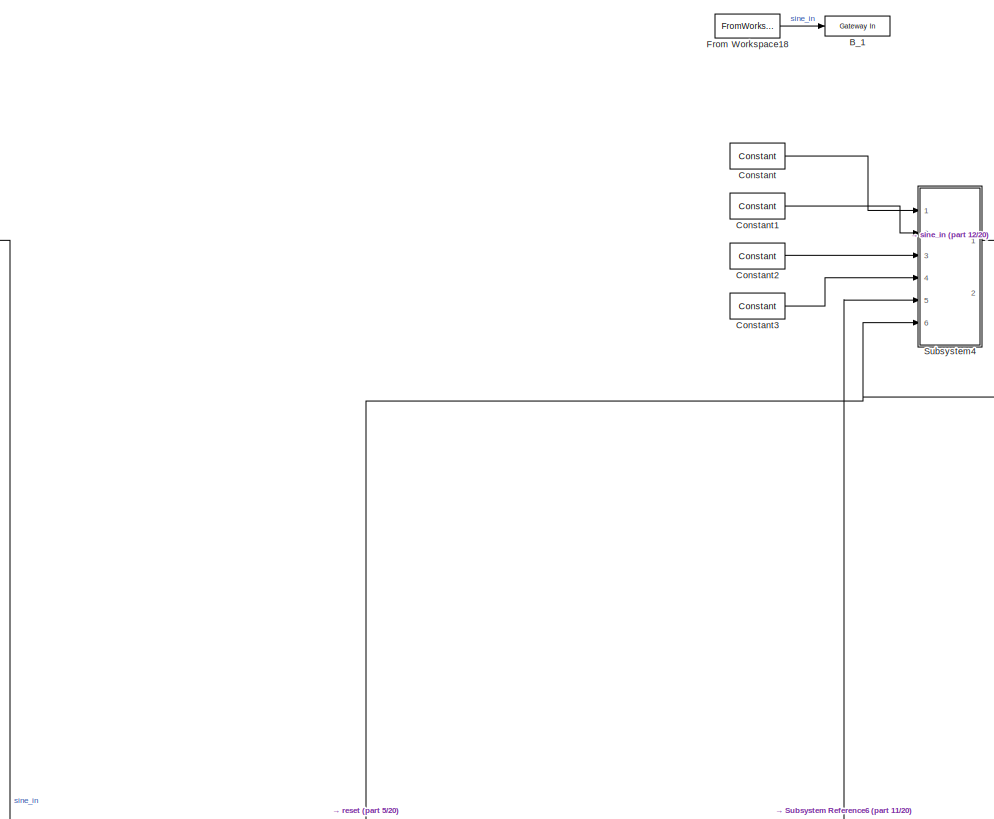
[diagram: root canvas - part 1/20, top center region]
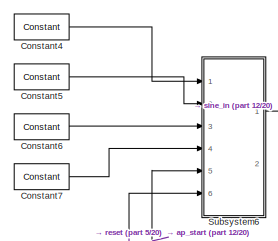
[diagram: root canvas - part 2/20, top right region]
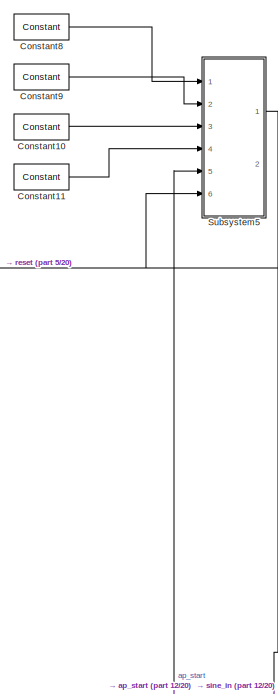
[diagram: root canvas - part 3/20, top right region]
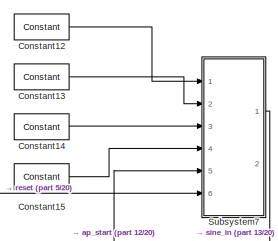
[diagram: root canvas - part 4/20, top right region]
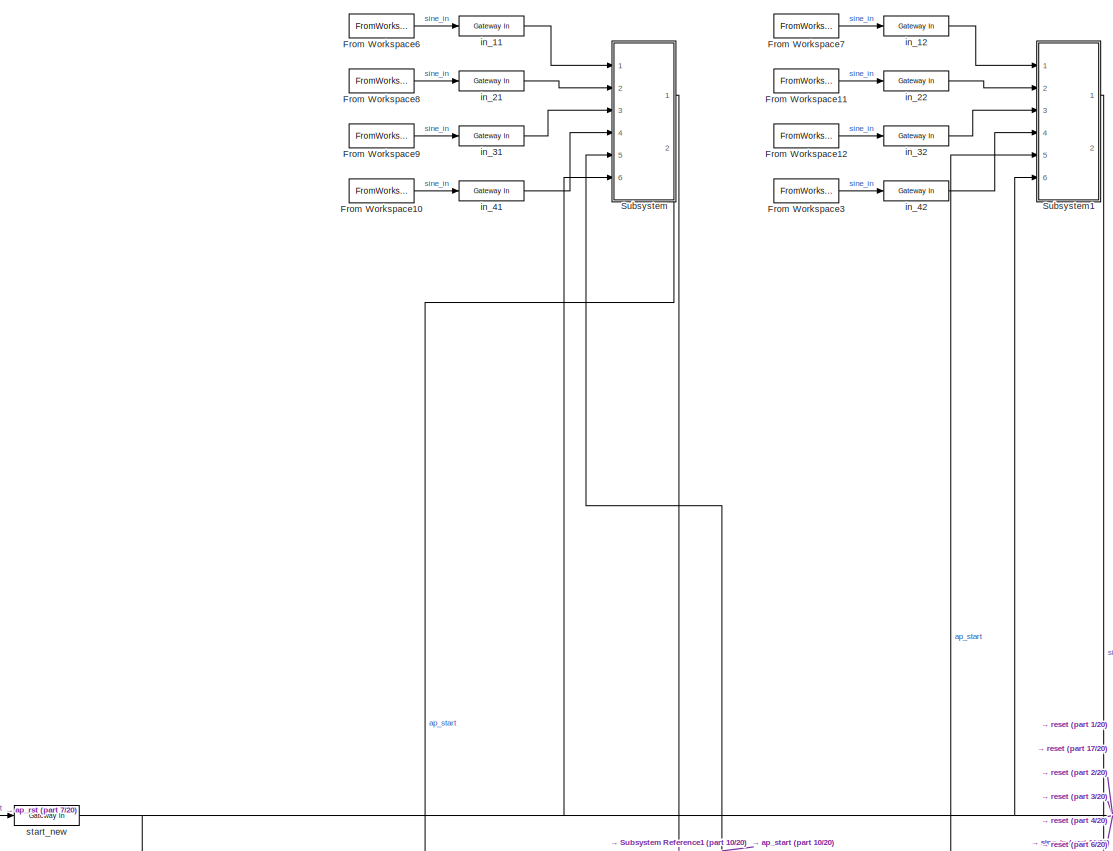
[diagram: root canvas - part 5/20, top left region]
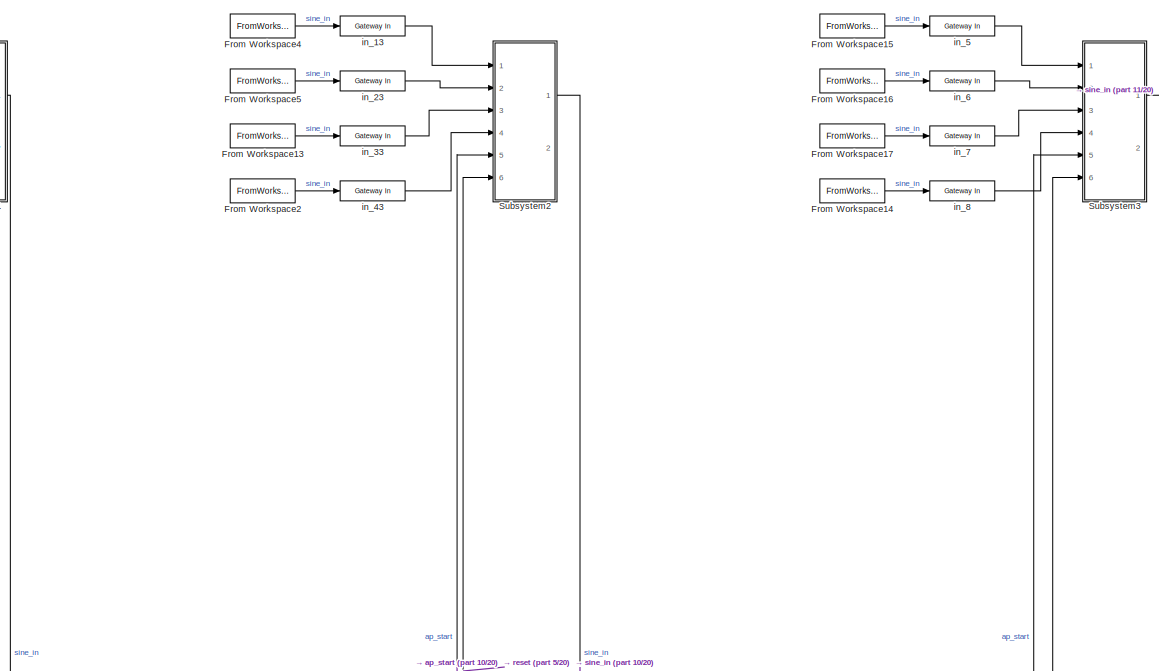
[diagram: root canvas - part 6/20, top center region]
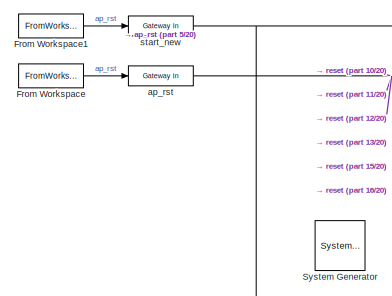
[diagram: root canvas - part 7/20, middle left region]
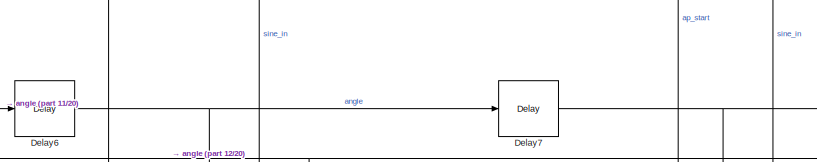
[diagram: root canvas - part 8/20, central region]
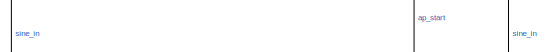
[diagram: root canvas - part 9/20, middle right region]
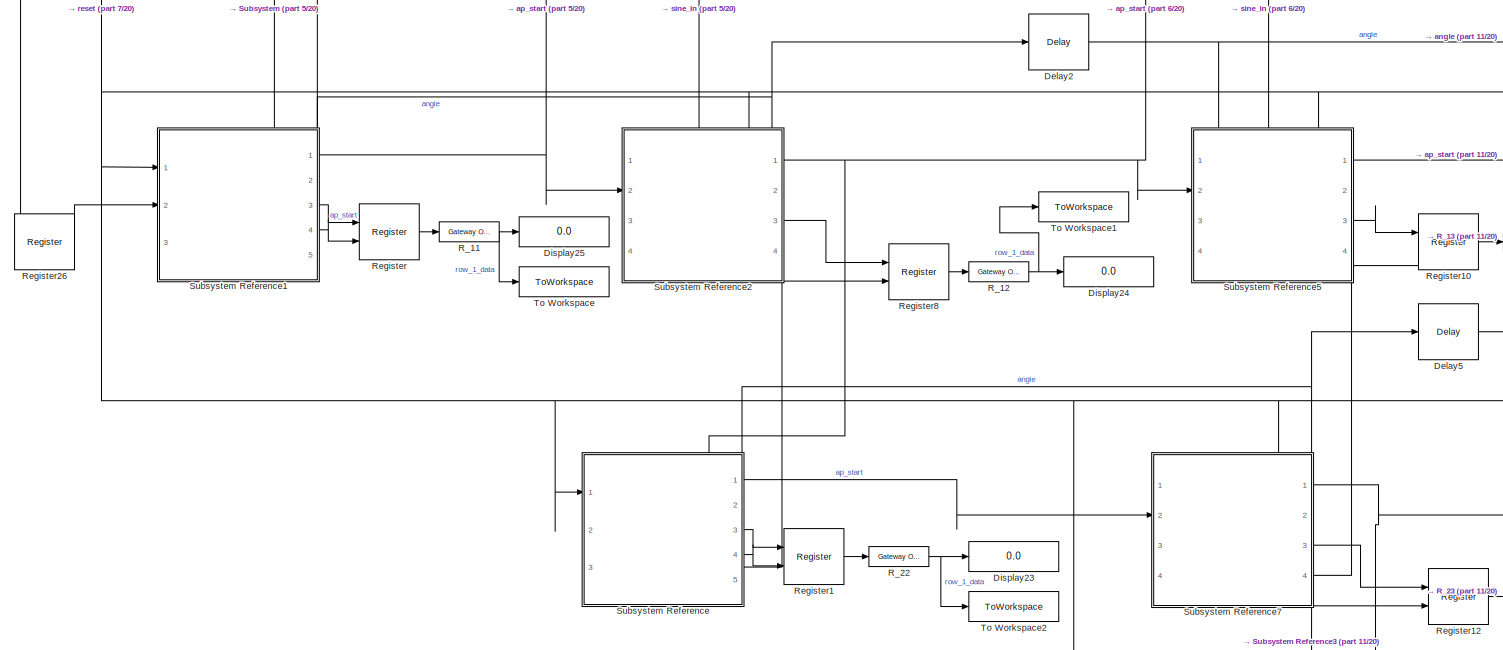
[diagram: root canvas - part 10/20, middle left region]
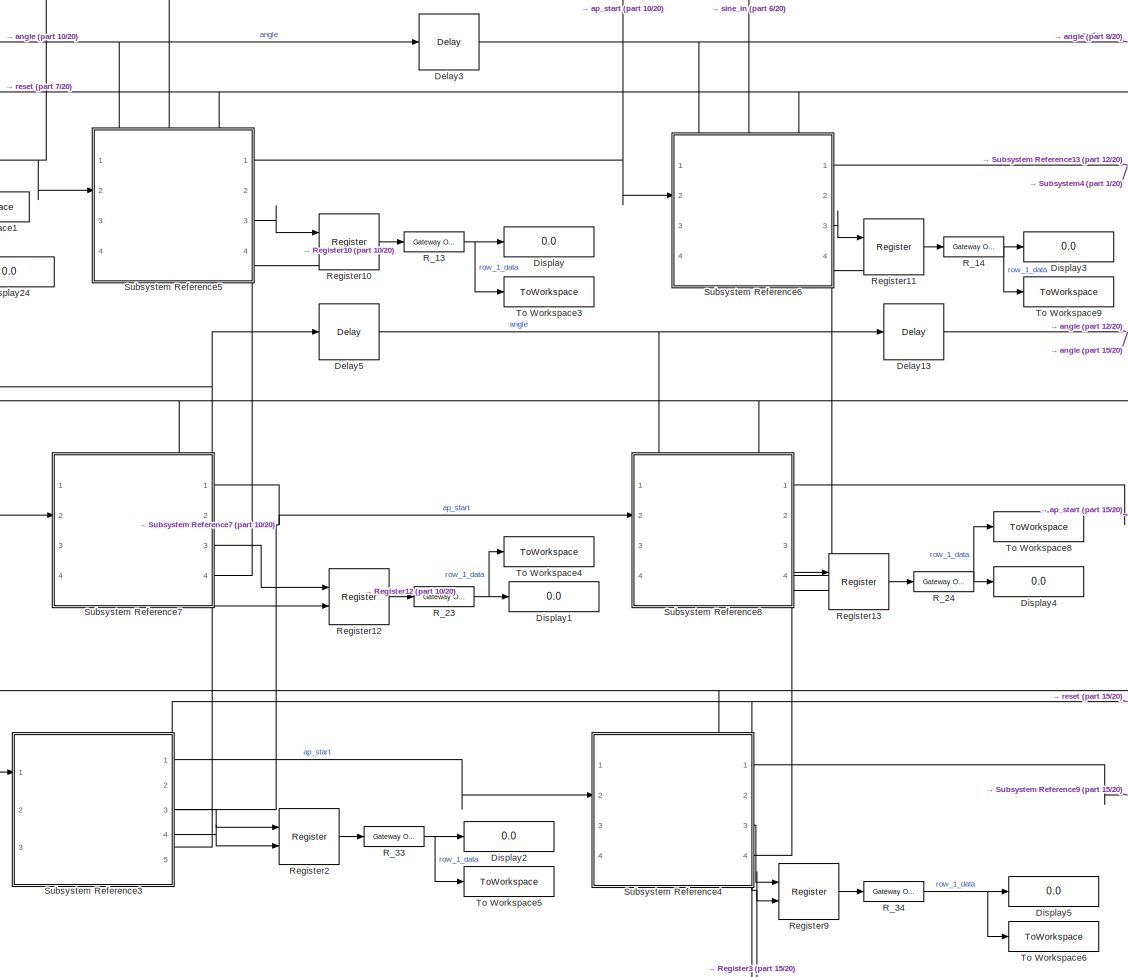
[diagram: root canvas - part 11/20, central region]
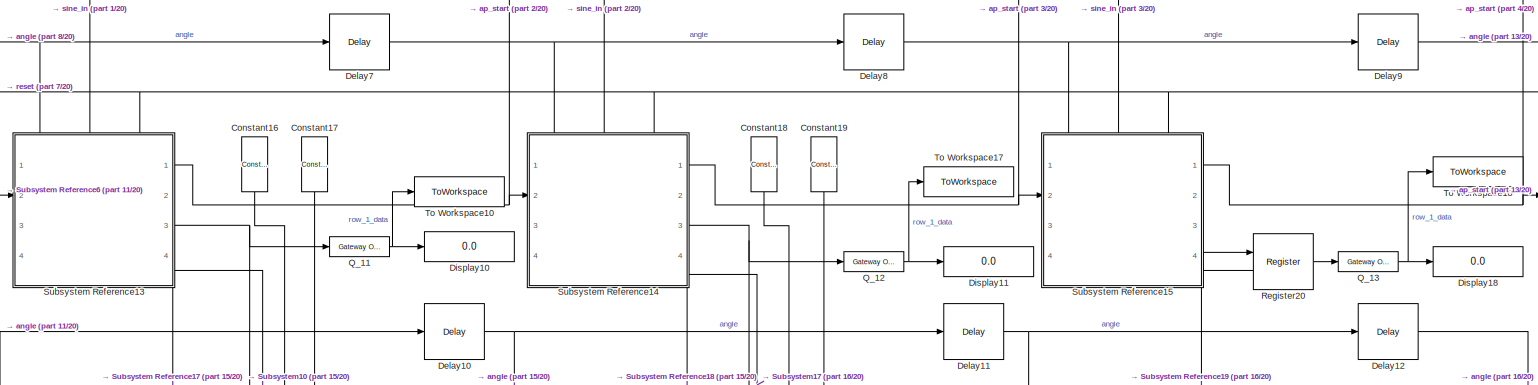
[diagram: root canvas - part 12/20, middle right region]
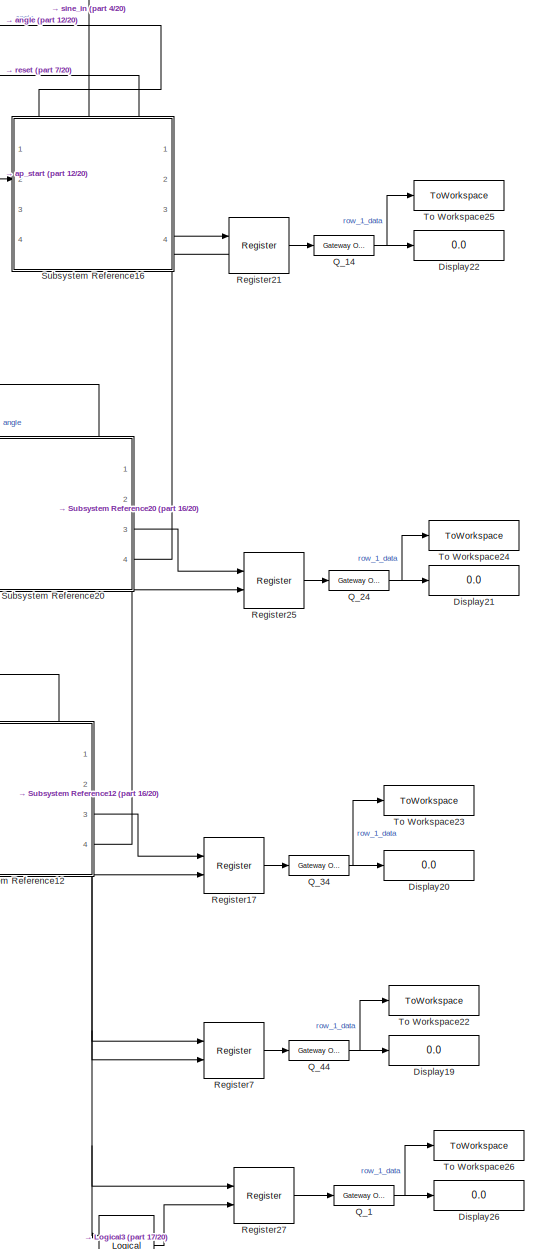
[diagram: root canvas - part 13/20, middle right region]
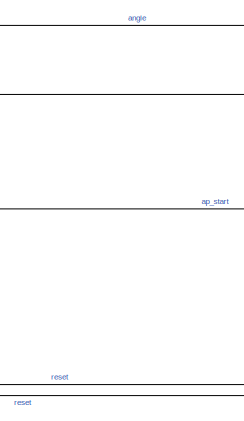
[diagram: root canvas - part 14/20, central region]
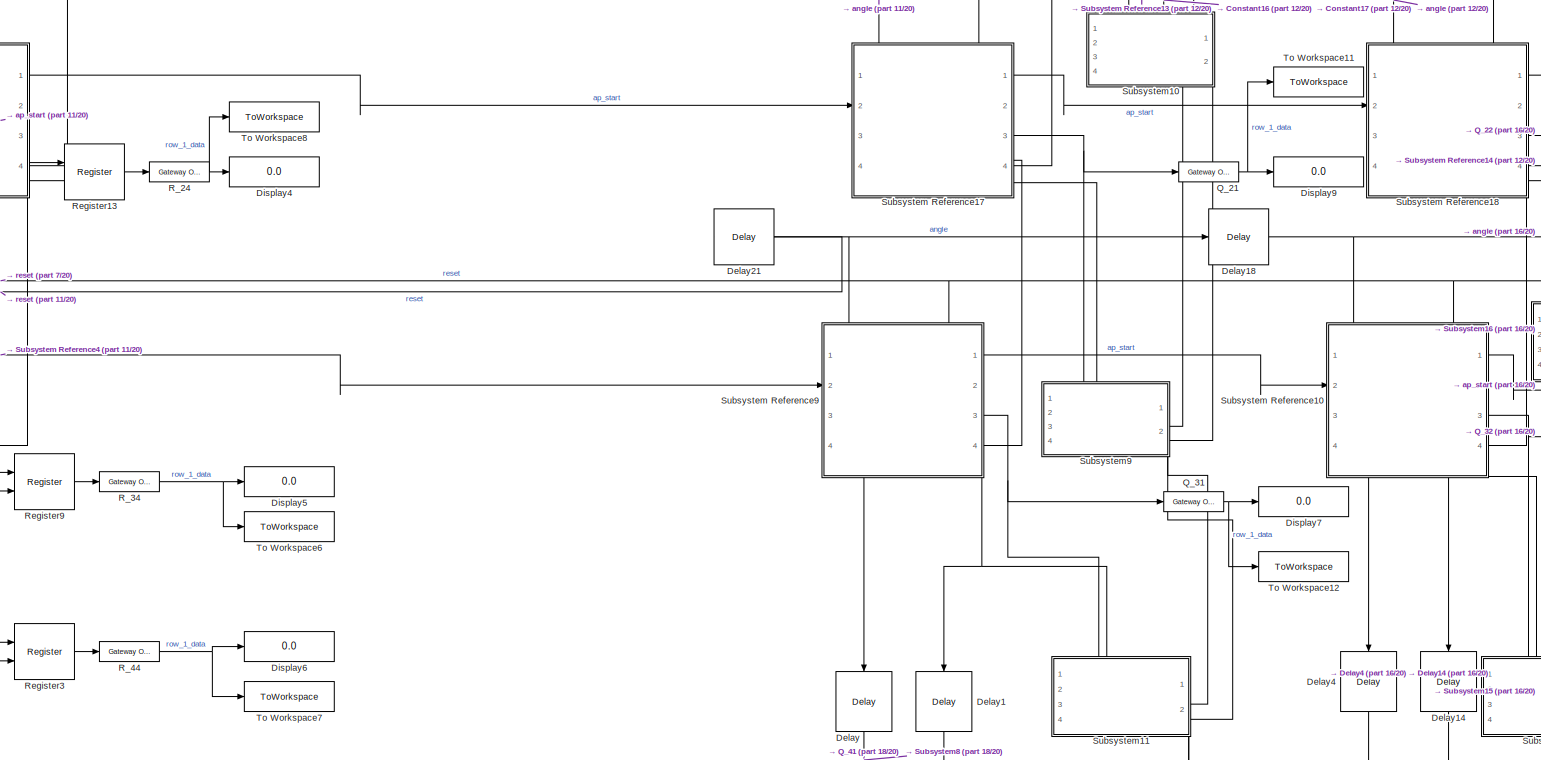
[diagram: root canvas - part 15/20, central region]
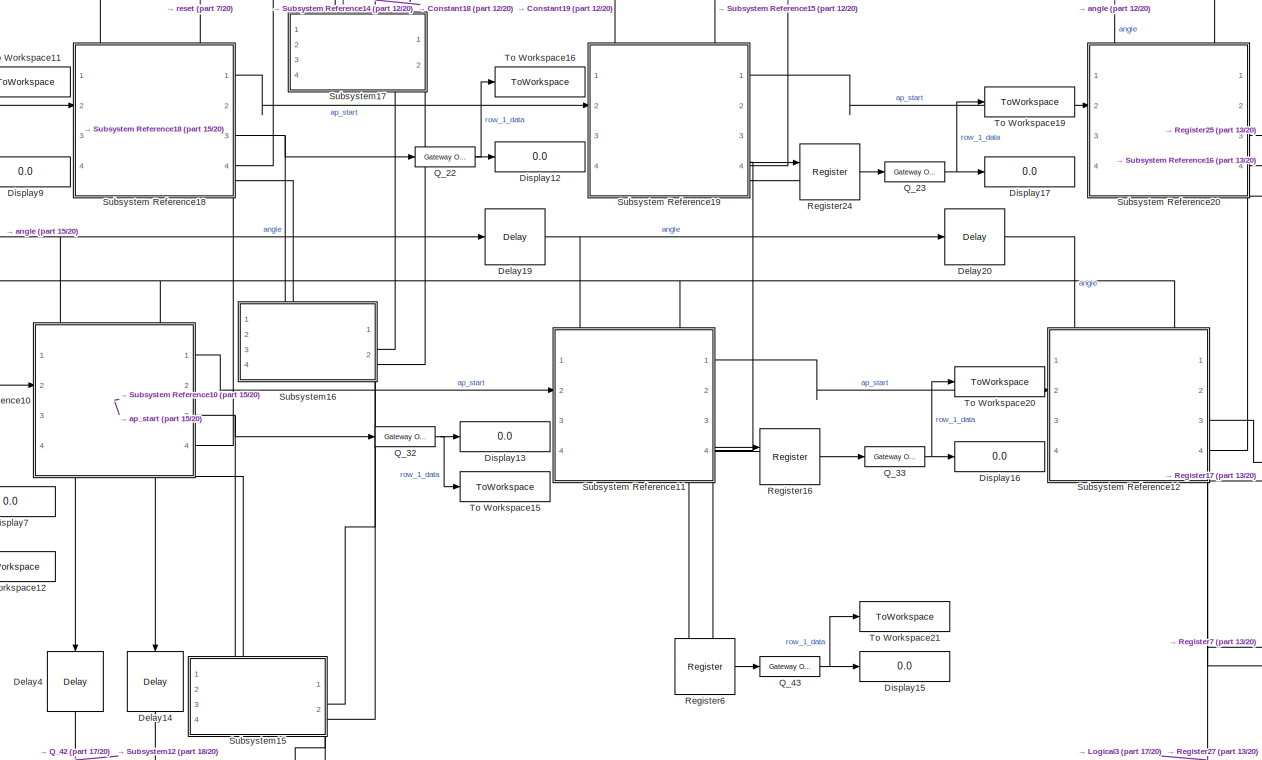
[diagram: root canvas - part 16/20, middle right region]
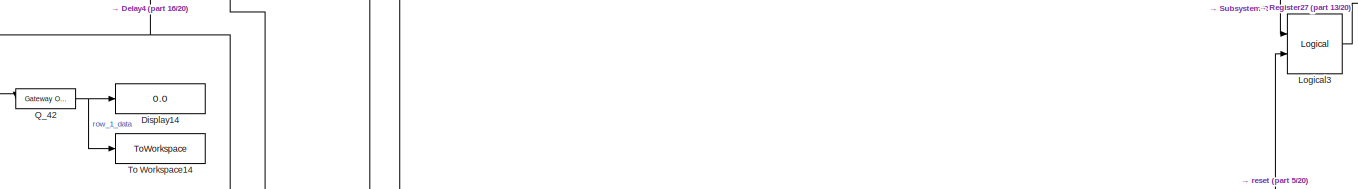
[diagram: root canvas - part 17/20, bottom right region]
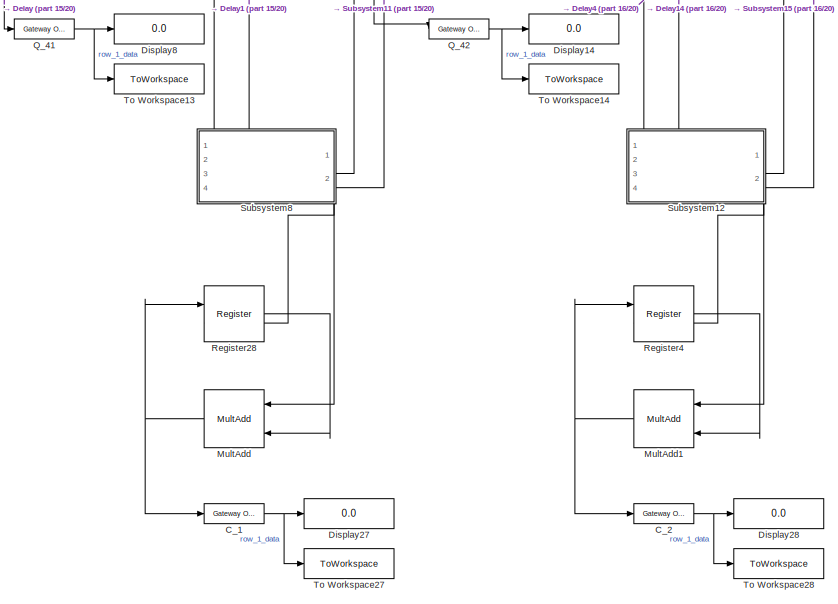
[diagram: root canvas - part 18/20, bottom right region]
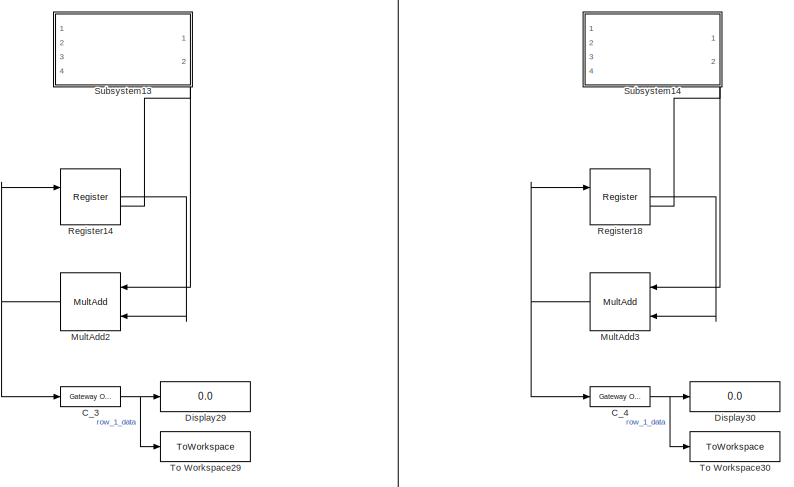
[diagram: root canvas - part 19/20, bottom right region]
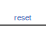
[diagram: root canvas - part 20/20, bottom center region]
MODEL slx_9b98534c2368
KIND model
CONFIG AbsTol = auto
CONFIG EnableMultiTasking = off
CONFIG FixedStep = auto
CONFIG MaxStep = auto
CONFIG MinStep = auto
CONFIG RelTol = 1e-3
CONFIG SampleTimeConstraint = Unconstrained
CONFIG SolverName = VariableStepAuto
CONFIG StartTime = 0.0
CONFIG StopTime = double(sim_length)
BLOCK [Reference]  System Generator  REF=xbsIndex_r4/ System Generator
  AttributesFormatString = System\nGenerator
  Ports = []
  SourceBlock = xbsIndex_r4/ System Generator
  SourceType = Xilinx System Generator Block
  Tag = genX
  UserDataPersistent = on
BLOCK [Reference] B_1  REF=hdlBasic/Gateway In
  Ports = [1, 1]
  SourceBlock = hdlBasic/Gateway In
  SourceType = Gateway In Block
BLOCK [Reference] C_1  REF=hdlBasic/Gateway Out
  Ports = [1, 1]
  SourceBlock = hdlBasic/Gateway Out
  SourceType = Gateway Out Block
BLOCK [Reference] C_2  REF=hdlBasic/Gateway Out
  Ports = [1, 1]
  SourceBlock = hdlBasic/Gateway Out
  SourceType = Gateway Out Block
BLOCK [Reference] C_3  REF=hdlBasic/Gateway Out
  Ports = [1, 1]
  SourceBlock = hdlBasic/Gateway Out
  SourceType = Gateway Out Block
BLOCK [Reference] C_4  REF=hdlBasic/Gateway Out
  Ports = [1, 1]
  SourceBlock = hdlBasic/Gateway Out
  SourceType = Gateway Out Block
BLOCK [Reference] Constant  REF=hdlBasic/Constant
  Ports = [0, 1]
  SourceBlock = hdlBasic/Constant
  SourceType = Constant Block Block
BLOCK [Reference] Constant1  REF=hdlBasic/Constant
  Ports = [0, 1]
  SourceBlock = hdlBasic/Constant
  SourceType = Constant Block Block
BLOCK [Reference] Constant10  REF=hdlBasic/Constant
  Ports = [0, 1]
  SourceBlock = hdlBasic/Constant
  SourceType = Constant Block Block
BLOCK [Reference] Constant11  REF=hdlBasic/Constant
  Ports = [0, 1]
  SourceBlock = hdlBasic/Constant
  SourceType = Constant Block Block
BLOCK [Reference] Constant12  REF=hdlBasic/Constant
  Ports = [0, 1]
  SourceBlock = hdlBasic/Constant
  SourceType = Constant Block Block
BLOCK [Reference] Constant13  REF=hdlBasic/Constant
  Ports = [0, 1]
  SourceBlock = hdlBasic/Constant
  SourceType = Constant Block Block
BLOCK [Reference] Constant14  REF=hdlBasic/Constant
  Ports = [0, 1]
  SourceBlock = hdlBasic/Constant
  SourceType = Constant Block Block
BLOCK [Reference] Constant15  REF=hdlBasic/Constant
  Ports = [0, 1]
  SourceBlock = hdlBasic/Constant
  SourceType = Constant Block Block
BLOCK [Reference] Constant16  REF=hdlBasic/Constant
  NameLocation = left
  Ports = [0, 1]
  SourceBlock = hdlBasic/Constant
  SourceType = Constant Block Block
BLOCK [Reference] Constant17  REF=hdlBasic/Constant
  NameLocation = left
  Ports = [0, 1]
  SourceBlock = hdlBasic/Constant
  SourceType = Constant Block Block
BLOCK [Reference] Constant18  REF=hdlBasic/Constant
  NameLocation = left
  Ports = [0, 1]
  SourceBlock = hdlBasic/Constant
  SourceType = Constant Block Block
BLOCK [Reference] Constant19  REF=hdlBasic/Constant
  NameLocation = left
  Ports = [0, 1]
  SourceBlock = hdlBasic/Constant
  SourceType = Constant Block Block
BLOCK [Reference] Constant2  REF=hdlBasic/Constant
  Ports = [0, 1]
  SourceBlock = hdlBasic/Constant
  SourceType = Constant Block Block
BLOCK [Reference] Constant3  REF=hdlBasic/Constant
  Ports = [0, 1]
  SourceBlock = hdlBasic/Constant
  SourceType = Constant Block Block
BLOCK [Reference] Constant4  REF=hdlBasic/Constant
  Ports = [0, 1]
  SourceBlock = hdlBasic/Constant
  SourceType = Constant Block Block
BLOCK [Reference] Constant5  REF=hdlBasic/Constant
  Ports = [0, 1]
  SourceBlock = hdlBasic/Constant
  SourceType = Constant Block Block
BLOCK [Reference] Constant6  REF=hdlBasic/Constant
  Ports = [0, 1]
  SourceBlock = hdlBasic/Constant
  SourceType = Constant Block Block
BLOCK [Reference] Constant7  REF=hdlBasic/Constant
  Ports = [0, 1]
  SourceBlock = hdlBasic/Constant
  SourceType = Constant Block Block
BLOCK [Reference] Constant8  REF=hdlBasic/Constant
  Ports = [0, 1]
  SourceBlock = hdlBasic/Constant
  SourceType = Constant Block Block
BLOCK [Reference] Constant9  REF=hdlBasic/Constant
  Ports = [0, 1]
  SourceBlock = hdlBasic/Constant
  SourceType = Constant Block Block
BLOCK [Reference] Delay  REF=hdlBasic/Delay
  NameLocation = left
  Ports = [1, 1]
  SourceBlock = hdlBasic/Delay
  SourceType = Delay Block
BLOCK [Reference] Delay1  REF=hdlBasic/Delay
  NameLocation = left
  Ports = [1, 1]
  SourceBlock = hdlBasic/Delay
  SourceType = Delay Block
BLOCK [Reference] Delay10  REF=hdlBasic/Delay
  NameLocation = top
  Ports = [1, 1]
  SourceBlock = hdlBasic/Delay
  SourceType = Delay Block
BLOCK [Reference] Delay11  REF=hdlBasic/Delay
  NameLocation = top
  Ports = [1, 1]
  SourceBlock = hdlBasic/Delay
  SourceType = Delay Block
BLOCK [Reference] Delay12  REF=hdlBasic/Delay
  NameLocation = top
  Ports = [1, 1]
  SourceBlock = hdlBasic/Delay
  SourceType = Delay Block
BLOCK [Reference] Delay13  REF=hdlBasic/Delay
  NameLocation = top
  Ports = [1, 1]
  SourceBlock = hdlBasic/Delay
  SourceType = Delay Block
BLOCK [Reference] Delay14  REF=hdlBasic/Delay
  NameLocation = left
  Ports = [1, 1]
  SourceBlock = hdlBasic/Delay
  SourceType = Delay Block
BLOCK [Reference] Delay18  REF=hdlBasic/Delay
  NameLocation = top
  Ports = [1, 1]
  SourceBlock = hdlBasic/Delay
  SourceType = Delay Block
BLOCK [Reference] Delay19  REF=hdlBasic/Delay
  NameLocation = top
  Ports = [1, 1]
  SourceBlock = hdlBasic/Delay
  SourceType = Delay Block
BLOCK [Reference] Delay2  REF=hdlBasic/Delay
  NameLocation = top
  Ports = [1, 1]
  SourceBlock = hdlBasic/Delay
  SourceType = Delay Block
BLOCK [Reference] Delay20  REF=hdlBasic/Delay
  NameLocation = top
  Ports = [1, 1]
  SourceBlock = hdlBasic/Delay
  SourceType = Delay Block
BLOCK [Reference] Delay21  REF=hdlBasic/Delay
  NameLocation = top
  Ports = [1, 1]
  SourceBlock = hdlBasic/Delay
  SourceType = Delay Block
BLOCK [Reference] Delay3  REF=hdlBasic/Delay
  NameLocation = top
  Ports = [1, 1]
  SourceBlock = hdlBasic/Delay
  SourceType = Delay Block
BLOCK [Reference] Delay4  REF=hdlBasic/Delay
  NameLocation = left
  Ports = [1, 1]
  SourceBlock = hdlBasic/Delay
  SourceType = Delay Block
BLOCK [Reference] Delay5  REF=hdlBasic/Delay
  NameLocation = top
  Ports = [1, 1]
  SourceBlock = hdlBasic/Delay
  SourceType = Delay Block
BLOCK [Reference] Delay6  REF=hdlBasic/Delay
  NameLocation = top
  Ports = [1, 1]
  SourceBlock = hdlBasic/Delay
  SourceType = Delay Block
BLOCK [Reference] Delay7  REF=hdlBasic/Delay
  NameLocation = top
  Ports = [1, 1]
  SourceBlock = hdlBasic/Delay
  SourceType = Delay Block
BLOCK [Reference] Delay8  REF=hdlBasic/Delay
  NameLocation = top
  Ports = [1, 1]
  SourceBlock = hdlBasic/Delay
  SourceType = Delay Block
BLOCK [Reference] Delay9  REF=hdlBasic/Delay
  NameLocation = top
  Ports = [1, 1]
  SourceBlock = hdlBasic/Delay
  SourceType = Delay Block
BLOCK [Display] Display
  Decimation = 1
  Ports = [1]
BLOCK [Display] Display1
  Decimation = 1
  Ports = [1]
BLOCK [Display] Display10
  Decimation = 1
  Ports = [1]
BLOCK [Display] Display11
  Decimation = 1
  Ports = [1]
BLOCK [Display] Display12
  Decimation = 1
  Ports = [1]
BLOCK [Display] Display13
  Decimation = 1
  Ports = [1]
BLOCK [Display] Display14
  Decimation = 1
  Ports = [1]
BLOCK [Display] Display15
  Decimation = 1
  Ports = [1]
BLOCK [Display] Display16
  Decimation = 1
  Ports = [1]
BLOCK [Display] Display17
  Decimation = 1
  Ports = [1]
BLOCK [Display] Display18
  Decimation = 1
  Ports = [1]
BLOCK [Display] Display19
  Decimation = 1
  Ports = [1]
BLOCK [Display] Display2
  Decimation = 1
  Ports = [1]
BLOCK [Display] Display20
  Decimation = 1
  Ports = [1]
BLOCK [Display] Display21
  Decimation = 1
  Ports = [1]
BLOCK [Display] Display22
  Decimation = 1
  Ports = [1]
BLOCK [Display] Display23
  Decimation = 1
  Ports = [1]
BLOCK [Display] Display24
  Decimation = 1
  Ports = [1]
BLOCK [Display] Display25
  Decimation = 1
  Ports = [1]
BLOCK [Display] Display26
  Decimation = 1
  Ports = [1]
BLOCK [Display] Display27
  Decimation = 1
  Ports = [1]
BLOCK [Display] Display28
  Decimation = 1
  Ports = [1]
BLOCK [Display] Display29
  Decimation = 1
  Ports = [1]
BLOCK [Display] Display3
  Decimation = 1
  Ports = [1]
BLOCK [Display] Display30
  Decimation = 1
  Ports = [1]
BLOCK [Display] Display4
  Decimation = 1
  Ports = [1]
BLOCK [Display] Display5
  Decimation = 1
  Ports = [1]
BLOCK [Display] Display6
  Decimation = 1
  Ports = [1]
BLOCK [Display] Display7
  Decimation = 1
  Ports = [1]
BLOCK [Display] Display8
  Decimation = 1
  Ports = [1]
BLOCK [Display] Display9
  Decimation = 1
  Ports = [1]
BLOCK [FromWorkspace] From Workspace
  OutputAfterFinalValue = Setting to zero
  VariableName = ap_rst
BLOCK [FromWorkspace] From Workspace1
  OutputAfterFinalValue = Setting to zero
  VariableName = start_new
BLOCK [FromWorkspace] From Workspace10
  OutputAfterFinalValue = Setting to zero
  VariableName = in_41
BLOCK [FromWorkspace] From Workspace11
  OutputAfterFinalValue = Setting to zero
  VariableName = in_22
BLOCK [FromWorkspace] From Workspace12
  OutputAfterFinalValue = Setting to zero
  VariableName = in_32
BLOCK [FromWorkspace] From Workspace13
  OutputAfterFinalValue = Setting to zero
  VariableName = in_33
BLOCK [FromWorkspace] From Workspace14
  OutputAfterFinalValue = Setting to zero
  VariableName = in_44
BLOCK [FromWorkspace] From Workspace15
  OutputAfterFinalValue = Setting to zero
  VariableName = in_14
BLOCK [FromWorkspace] From Workspace16
  OutputAfterFinalValue = Setting to zero
  VariableName = in_24
BLOCK [FromWorkspace] From Workspace17
  OutputAfterFinalValue = Setting to zero
  VariableName = in_34
BLOCK [FromWorkspace] From Workspace18
  OutputAfterFinalValue = Setting to zero
  VariableName = B_1
BLOCK [FromWorkspace] From Workspace2
  OutputAfterFinalValue = Setting to zero
  VariableName = in_43
BLOCK [FromWorkspace] From Workspace3
  OutputAfterFinalValue = Setting to zero
  VariableName = in_42
BLOCK [FromWorkspace] From Workspace4
  OutputAfterFinalValue = Setting to zero
  VariableName = in_13
BLOCK [FromWorkspace] From Workspace5
  OutputAfterFinalValue = Setting to zero
  VariableName = in_23
BLOCK [FromWorkspace] From Workspace6
  OutputAfterFinalValue = Setting to zero
  VariableName = in_11
BLOCK [FromWorkspace] From Workspace7
  OutputAfterFinalValue = Setting to zero
  VariableName = in_12
BLOCK [FromWorkspace] From Workspace8
  OutputAfterFinalValue = Setting to zero
  VariableName = in_21
BLOCK [FromWorkspace] From Workspace9
  OutputAfterFinalValue = Setting to zero
  VariableName = in_31
BLOCK [Reference] Logical3  REF=hdlBasic/Logical
  Ports = [2, 1]
  SourceBlock = hdlBasic/Logical
  SourceType = Logical Block Block
BLOCK [Reference] MultAdd  REF=hdlBasic/MultAdd
  NameLocation = top
  Ports = [3, 1]
  SourceBlock = hdlBasic/MultAdd
  SourceType = Multiply Adder Block
BLOCK [Reference] MultAdd1  REF=hdlBasic/MultAdd
  NameLocation = top
  Ports = [3, 1]
  SourceBlock = hdlBasic/MultAdd
  SourceType = Multiply Adder Block
BLOCK [Reference] MultAdd2  REF=hdlBasic/MultAdd
  NameLocation = top
  Ports = [3, 1]
  SourceBlock = hdlBasic/MultAdd
  SourceType = Multiply Adder Block
BLOCK [Reference] MultAdd3  REF=hdlBasic/MultAdd
  NameLocation = top
  Ports = [3, 1]
  SourceBlock = hdlBasic/MultAdd
  SourceType = Multiply Adder Block
BLOCK [Reference] Q_1  REF=hdlBasic/Gateway Out
  Ports = [1, 1]
  SourceBlock = hdlBasic/Gateway Out
  SourceType = Gateway Out Block
BLOCK [Reference] Q_11  REF=hdlBasic/Gateway Out
  Ports = [1, 1]
  SourceBlock = hdlBasic/Gateway Out
  SourceType = Gateway Out Block
BLOCK [Reference] Q_12  REF=hdlBasic/Gateway Out
  Ports = [1, 1]
  SourceBlock = hdlBasic/Gateway Out
  SourceType = Gateway Out Block
BLOCK [Reference] Q_13  REF=hdlBasic/Gateway Out
  Ports = [1, 1]
  SourceBlock = hdlBasic/Gateway Out
  SourceType = Gateway Out Block
BLOCK [Reference] Q_14  REF=hdlBasic/Gateway Out
  Ports = [1, 1]
  SourceBlock = hdlBasic/Gateway Out
  SourceType = Gateway Out Block
BLOCK [Reference] Q_21  REF=hdlBasic/Gateway Out
  Ports = [1, 1]
  SourceBlock = hdlBasic/Gateway Out
  SourceType = Gateway Out Block
BLOCK [Reference] Q_22  REF=hdlBasic/Gateway Out
  Ports = [1, 1]
  SourceBlock = hdlBasic/Gateway Out
  SourceType = Gateway Out Block
BLOCK [Reference] Q_23  REF=hdlBasic/Gateway Out
  Ports = [1, 1]
  SourceBlock = hdlBasic/Gateway Out
  SourceType = Gateway Out Block
BLOCK [Reference] Q_24  REF=hdlBasic/Gateway Out
  Ports = [1, 1]
  SourceBlock = hdlBasic/Gateway Out
  SourceType = Gateway Out Block
BLOCK [Reference] Q_31  REF=hdlBasic/Gateway Out
  Ports = [1, 1]
  SourceBlock = hdlBasic/Gateway Out
  SourceType = Gateway Out Block
BLOCK [Reference] Q_32  REF=hdlBasic/Gateway Out
  Ports = [1, 1]
  SourceBlock = hdlBasic/Gateway Out
  SourceType = Gateway Out Block
BLOCK [Reference] Q_33  REF=hdlBasic/Gateway Out
  Ports = [1, 1]
  SourceBlock = hdlBasic/Gateway Out
  SourceType = Gateway Out Block
BLOCK [Reference] Q_34  REF=hdlBasic/Gateway Out
  Ports = [1, 1]
  SourceBlock = hdlBasic/Gateway Out
  SourceType = Gateway Out Block
BLOCK [Reference] Q_41  REF=hdlBasic/Gateway Out
  Ports = [1, 1]
  SourceBlock = hdlBasic/Gateway Out
  SourceType = Gateway Out Block
BLOCK [Reference] Q_42  REF=hdlBasic/Gateway Out
  Ports = [1, 1]
  SourceBlock = hdlBasic/Gateway Out
  SourceType = Gateway Out Block
BLOCK [Reference] Q_43  REF=hdlBasic/Gateway Out
  Ports = [1, 1]
  SourceBlock = hdlBasic/Gateway Out
  SourceType = Gateway Out Block
BLOCK [Reference] Q_44  REF=hdlBasic/Gateway Out
  Ports = [1, 1]
  SourceBlock = hdlBasic/Gateway Out
  SourceType = Gateway Out Block
BLOCK [Reference] R_11  REF=hdlBasic/Gateway Out
  Ports = [1, 1]
  SourceBlock = hdlBasic/Gateway Out
  SourceType = Gateway Out Block
BLOCK [Reference] R_12  REF=hdlBasic/Gateway Out
  Ports = [1, 1]
  SourceBlock = hdlBasic/Gateway Out
  SourceType = Gateway Out Block
BLOCK [Reference] R_13  REF=hdlBasic/Gateway Out
  Ports = [1, 1]
  SourceBlock = hdlBasic/Gateway Out
  SourceType = Gateway Out Block
BLOCK [Reference] R_14  REF=hdlBasic/Gateway Out
  Ports = [1, 1]
  SourceBlock = hdlBasic/Gateway Out
  SourceType = Gateway Out Block
BLOCK [Reference] R_22  REF=hdlBasic/Gateway Out
  Ports = [1, 1]
  SourceBlock = hdlBasic/Gateway Out
  SourceType = Gateway Out Block
BLOCK [Reference] R_23  REF=hdlBasic/Gateway Out
  Ports = [1, 1]
  SourceBlock = hdlBasic/Gateway Out
  SourceType = Gateway Out Block
BLOCK [Reference] R_24  REF=hdlBasic/Gateway Out
  Ports = [1, 1]
  SourceBlock = hdlBasic/Gateway Out
  SourceType = Gateway Out Block
BLOCK [Reference] R_33  REF=hdlBasic/Gateway Out
  Ports = [1, 1]
  SourceBlock = hdlBasic/Gateway Out
  SourceType = Gateway Out Block
BLOCK [Reference] R_34  REF=hdlBasic/Gateway Out
  Ports = [1, 1]
  SourceBlock = hdlBasic/Gateway Out
  SourceType = Gateway Out Block
BLOCK [Reference] R_44  REF=hdlBasic/Gateway Out
  Ports = [1, 1]
  SourceBlock = hdlBasic/Gateway Out
  SourceType = Gateway Out Block
BLOCK [Reference] Register  REF=hdlBasic/Register
  Ports = [2, 1]
  SourceBlock = hdlBasic/Register
  SourceType = Register Block
BLOCK [Reference] Register1  REF=hdlBasic/Register
  Ports = [2, 1]
  SourceBlock = hdlBasic/Register
  SourceType = Register Block
BLOCK [Reference] Register10  REF=hdlBasic/Register
  Ports = [2, 1]
  SourceBlock = hdlBasic/Register
  SourceType = Register Block
BLOCK [Reference] Register11  REF=hdlBasic/Register
  Ports = [2, 1]
  SourceBlock = hdlBasic/Register
  SourceType = Register Block
BLOCK [Reference] Register12  REF=hdlBasic/Register
  Ports = [2, 1]
  SourceBlock = hdlBasic/Register
  SourceType = Register Block
BLOCK [Reference] Register13  REF=hdlBasic/Register
  Ports = [2, 1]
  SourceBlock = hdlBasic/Register
  SourceType = Register Block
BLOCK [Reference] Register14  REF=hdlBasic/Register
  Ports = [2, 1]
  SourceBlock = hdlBasic/Register
  SourceType = Register Block
BLOCK [Reference] Register16  REF=hdlBasic/Register
  Ports = [2, 1]
  SourceBlock = hdlBasic/Register
  SourceType = Register Block
BLOCK [Reference] Register17  REF=hdlBasic/Register
  Ports = [2, 1]
  SourceBlock = hdlBasic/Register
  SourceType = Register Block
BLOCK [Reference] Register18  REF=hdlBasic/Register
  Ports = [2, 1]
  SourceBlock = hdlBasic/Register
  SourceType = Register Block
BLOCK [Reference] Register2  REF=hdlBasic/Register
  Ports = [2, 1]
  SourceBlock = hdlBasic/Register
  SourceType = Register Block
BLOCK [Reference] Register20  REF=hdlBasic/Register
  Ports = [2, 1]
  SourceBlock = hdlBasic/Register
  SourceType = Register Block
BLOCK [Reference] Register21  REF=hdlBasic/Register
  Ports = [2, 1]
  SourceBlock = hdlBasic/Register
  SourceType = Register Block
BLOCK [Reference] Register24  REF=hdlBasic/Register
  Ports = [2, 1]
  SourceBlock = hdlBasic/Register
  SourceType = Register Block
BLOCK [Reference] Register25  REF=hdlBasic/Register
  Ports = [2, 1]
  SourceBlock = hdlBasic/Register
  SourceType = Register Block
BLOCK [Reference] Register26  REF=hdlBasic/Register
  Ports = [1, 1]
  SourceBlock = hdlBasic/Register
  SourceType = Register Block
BLOCK [Reference] Register27  REF=hdlBasic/Register
  Ports = [2, 1]
  SourceBlock = hdlBasic/Register
  SourceType = Register Block
BLOCK [Reference] Register28  REF=hdlBasic/Register
  Ports = [2, 1]
  SourceBlock = hdlBasic/Register
  SourceType = Register Block
BLOCK [Reference] Register3  REF=hdlBasic/Register
  Ports = [2, 1]
  SourceBlock = hdlBasic/Register
  SourceType = Register Block
BLOCK [Reference] Register4  REF=hdlBasic/Register
  Ports = [2, 1]
  SourceBlock = hdlBasic/Register
  SourceType = Register Block
BLOCK [Reference] Register6  REF=hdlBasic/Register
  Ports = [2, 1]
  SourceBlock = hdlBasic/Register
  SourceType = Register Block
BLOCK [Reference] Register7  REF=hdlBasic/Register
  Ports = [2, 1]
  SourceBlock = hdlBasic/Register
  SourceType = Register Block
BLOCK [Reference] Register8  REF=hdlBasic/Register
  Ports = [2, 1]
  SourceBlock = hdlBasic/Register
  SourceType = Register Block
BLOCK [Reference] Register9  REF=hdlBasic/Register
  Ports = [2, 1]
  SourceBlock = hdlBasic/Register
  SourceType = Register Block
BLOCK [SubSystem] Subsystem
  PortSchema = {"entries":[{"content":{"sides":[{"content":{"connectorIds":["In1","In2","In3","In4","In5","In6"]},"type":"ConnectorPlacement.EquallySpacedRectSide","uuid":"c9659870-197e-4708-9e56-aa8d60ec2132"},{"content":{"connectorIds":["Out1"],"side":"RIGHT"},"type":"ConnectorPlacement.EquallySpacedRectSide","uuid":"f9d7c189-098f-4a24-828d-c7ef82e0ce16"},{"content":{"connectorIds":[],"side":"TOP"},"type":"Con...<+420ch>  <repeated x8 — deduplicated; at blocks: Subsystem, Subsystem1, Subsystem2, Subsystem3, Subsystem4, Subsystem5, Subsystem6, Subsystem7>
  Ports = [6, 2]
  ReferencedSubsystem = input_muxer
  RequestExecContextInheritance = off
BLOCK [SubSystem] Subsystem Reference
  PortSchema = {"entries":[{"content":{"sides":[{"content":{"connectorIds":["In1"]},"type":"ConnectorPlacement.EquallySpacedRectSide","uuid":"e73d0d7d-03bc-4d00-801b-b8c760b16be4"},{"content":{"connectorIds":["Out1","Out3","Out4"],"side":"RIGHT"},"type":"ConnectorPlacement.EquallySpacedRectSide","uuid":"fb412951-8b1f-47f8-8fed-40e91e78b205"},{"content":{"connectorIds":["Out2","In3","In2"],"side":"TOP"},"type":"C...<+422ch>
  Ports = [3, 5]
  ReferencedSubsystem = ATAN_static
  RequestExecContextInheritance = off
BLOCK [SubSystem] Subsystem Reference1
  PortSchema = {"entries":[{"content":{"sides":[{"content":{"connectorIds":["In1","In2"]},"type":"ConnectorPlacement.EquallySpacedRectSide","uuid":"e73d0d7d-03bc-4d00-801b-b8c760b16be4"},{"content":{"connectorIds":["Out1","Out3","Out4"],"side":"RIGHT"},"type":"ConnectorPlacement.EquallySpacedRectSide","uuid":"fb412951-8b1f-47f8-8fed-40e91e78b205"},{"content":{"connectorIds":["Out2","In3"],"side":"TOP"},"type":"C...<+422ch>
  Ports = [3, 5]
  ReferencedSubsystem = ATAN_static
  RequestExecContextInheritance = off
BLOCK [SubSystem] Subsystem Reference10
  PortSchema = {"entries":[{"content":{"sides":[{"content":{"connectorIds":["In2"]},"type":"ConnectorPlacement.EquallySpacedRectSide","uuid":"e73d0d7d-03bc-4d00-801b-b8c760b16be4"},{"content":{"connectorIds":["Out1","Out3"],"side":"RIGHT"},"type":"ConnectorPlacement.EquallySpacedRectSide","uuid":"fb412951-8b1f-47f8-8fed-40e91e78b205"},{"content":{"connectorIds":["In3","In4","In1"],"side":"TOP"},"type":"Connector...<+421ch>  <repeated x18 — deduplicated; at blocks: Subsystem Reference10, Subsystem Reference11, Subsystem Reference12, Subsystem Reference13, Subsystem Reference14, Subsystem Reference15, Subsystem Reference16, Subsystem Reference17, Subsystem Reference18, Subsystem Reference19, Subsystem Reference2, Subsystem Reference20, Subsystem Reference4, Subsystem Reference5, Subsystem Reference6, Subsystem Reference7, +2 more>
  Ports = [4, 4]
  ReferencedSubsystem = ROT_static
  RequestExecContextInheritance = off
BLOCK [SubSystem] Subsystem Reference11
  Ports = [4, 4]
  ReferencedSubsystem = ROT_static
  RequestExecContextInheritance = off
BLOCK [SubSystem] Subsystem Reference12
  Ports = [4, 4]
  ReferencedSubsystem = ROT_static
  RequestExecContextInheritance = off
BLOCK [SubSystem] Subsystem Reference13
  Ports = [4, 4]
  ReferencedSubsystem = ROT_static
  RequestExecContextInheritance = off
BLOCK [SubSystem] Subsystem Reference14
  Ports = [4, 4]
  ReferencedSubsystem = ROT_static
  RequestExecContextInheritance = off
BLOCK [SubSystem] Subsystem Reference15
  Ports = [4, 4]
  ReferencedSubsystem = ROT_static
  RequestExecContextInheritance = off
BLOCK [SubSystem] Subsystem Reference16
  Ports = [4, 4]
  ReferencedSubsystem = ROT_static
  RequestExecContextInheritance = off
BLOCK [SubSystem] Subsystem Reference17
  Ports = [4, 4]
  ReferencedSubsystem = ROT_static
  RequestExecContextInheritance = off
BLOCK [SubSystem] Subsystem Reference18
  Ports = [4, 4]
  ReferencedSubsystem = ROT_static
  RequestExecContextInheritance = off
BLOCK [SubSystem] Subsystem Reference19
  Ports = [4, 4]
  ReferencedSubsystem = ROT_static
  RequestExecContextInheritance = off
BLOCK [SubSystem] Subsystem Reference2
  Ports = [4, 4]
  ReferencedSubsystem = ROT_static
  RequestExecContextInheritance = off
BLOCK [SubSystem] Subsystem Reference20
  Ports = [4, 4]
  ReferencedSubsystem = ROT_static
  RequestExecContextInheritance = off
BLOCK [SubSystem] Subsystem Reference3
  PortSchema = {"entries":[{"content":{"sides":[{"content":{"connectorIds":["In1"]},"type":"ConnectorPlacement.EquallySpacedRectSide","uuid":"e73d0d7d-03bc-4d00-801b-b8c760b16be4"},{"content":{"connectorIds":["Out1","Out3","Out4"],"side":"RIGHT"},"type":"ConnectorPlacement.EquallySpacedRectSide","uuid":"fb412951-8b1f-47f8-8fed-40e91e78b205"},{"content":{"connectorIds":["Out2","In3","In2"],"side":"TOP"},"type":"C...<+422ch>
  Ports = [3, 5]
  ReferencedSubsystem = ATAN_static
  RequestExecContextInheritance = off
BLOCK [SubSystem] Subsystem Reference4
  Ports = [4, 4]
  ReferencedSubsystem = ROT_static
  RequestExecContextInheritance = off
BLOCK [SubSystem] Subsystem Reference5
  Ports = [4, 4]
  ReferencedSubsystem = ROT_static
  RequestExecContextInheritance = off
BLOCK [SubSystem] Subsystem Reference6
  Ports = [4, 4]
  ReferencedSubsystem = ROT_static
  RequestExecContextInheritance = off
BLOCK [SubSystem] Subsystem Reference7
  Ports = [4, 4]
  ReferencedSubsystem = ROT_static
  RequestExecContextInheritance = off
BLOCK [SubSystem] Subsystem Reference8
  Ports = [4, 4]
  ReferencedSubsystem = ROT_static
  RequestExecContextInheritance = off
BLOCK [SubSystem] Subsystem Reference9
  Ports = [4, 4]
  ReferencedSubsystem = ROT_static
  RequestExecContextInheritance = off
BLOCK [SubSystem] Subsystem1
  Ports = [6, 2]
  ReferencedSubsystem = input_muxer
  RequestExecContextInheritance = off
BLOCK [SubSystem] Subsystem10
  PortSchema = {"entries":[{"content":{"sides":[{"content":{"connectorIds":[]},"type":"ConnectorPlacement.EquallySpacedRectSide","uuid":"f96c7e86-64a4-4252-abea-b711e367158a"},{"content":{"connectorIds":[],"side":"RIGHT"},"type":"ConnectorPlacement.EquallySpacedRectSide","uuid":"0939b534-8e75-43bd-89b2-3b8c6cf8d932"},{"content":{"connectorIds":["In2","In1","In4","In3"],"side":"TOP"},"type":"ConnectorPlacement.Eq...<+409ch>  <repeated x6 — deduplicated; at blocks: Subsystem10, Subsystem11, Subsystem15, Subsystem16, Subsystem17, Subsystem9>
  Ports = [4, 2]
  ReferencedSubsystem = Output_Selector_Simple
  RequestExecContextInheritance = off
BLOCK [SubSystem] Subsystem11
  Ports = [4, 2]
  ReferencedSubsystem = Output_Selector_Simple
  RequestExecContextInheritance = off
BLOCK [SubSystem] Subsystem12
  PortSchema = {"entries":[{"content":{"sides":[{"content":{"connectorIds":[]},"type":"ConnectorPlacement.EquallySpacedRectSide","uuid":"f96c7e86-64a4-4252-abea-b711e367158a"},{"content":{"connectorIds":[],"side":"RIGHT"},"type":"ConnectorPlacement.EquallySpacedRectSide","uuid":"0939b534-8e75-43bd-89b2-3b8c6cf8d932"},{"content":{"connectorIds":["In1","In2","In4","In3"],"side":"TOP"},"type":"ConnectorPlacement.Eq...<+409ch>  <repeated x4 — deduplicated; at blocks: Subsystem12, Subsystem13, Subsystem14, Subsystem8>
  Ports = [4, 2]
  ReferencedSubsystem = Output_Selector_Simple
  RequestExecContextInheritance = off
BLOCK [SubSystem] Subsystem13
  Ports = [4, 2]
  ReferencedSubsystem = Output_Selector_Simple
  RequestExecContextInheritance = off
BLOCK [SubSystem] Subsystem14
  Ports = [4, 2]
  ReferencedSubsystem = Output_Selector_Simple
  RequestExecContextInheritance = off
BLOCK [SubSystem] Subsystem15
  Ports = [4, 2]
  ReferencedSubsystem = Output_Selector_Simple
  RequestExecContextInheritance = off
BLOCK [SubSystem] Subsystem16
  Ports = [4, 2]
  ReferencedSubsystem = Output_Selector_Simple
  RequestExecContextInheritance = off
BLOCK [SubSystem] Subsystem17
  Ports = [4, 2]
  ReferencedSubsystem = Output_Selector_Simple
  RequestExecContextInheritance = off
BLOCK [SubSystem] Subsystem2
  Ports = [6, 2]
  ReferencedSubsystem = input_muxer
  RequestExecContextInheritance = off
BLOCK [SubSystem] Subsystem3
  Ports = [6, 2]
  ReferencedSubsystem = input_muxer
  RequestExecContextInheritance = off
BLOCK [SubSystem] Subsystem4
  Ports = [6, 2]
  ReferencedSubsystem = input_muxer
  RequestExecContextInheritance = off
BLOCK [SubSystem] Subsystem5
  Ports = [6, 2]
  ReferencedSubsystem = input_muxer
  RequestExecContextInheritance = off
BLOCK [SubSystem] Subsystem6
  Ports = [6, 2]
  ReferencedSubsystem = input_muxer
  RequestExecContextInheritance = off
BLOCK [SubSystem] Subsystem7
  Ports = [6, 2]
  ReferencedSubsystem = input_muxer
  RequestExecContextInheritance = off
BLOCK [SubSystem] Subsystem8
  Ports = [4, 2]
  ReferencedSubsystem = Output_Selector_Simple
  RequestExecContextInheritance = off
BLOCK [SubSystem] Subsystem9
  Ports = [4, 2]
  ReferencedSubsystem = Output_Selector_Simple
  RequestExecContextInheritance = off
BLOCK [ToWorkspace] To Workspace
  FixptAsFi = on
  MaxDataPoints = inf
  Ports = [1]
  SampleTime = -1
  SaveFormat = Timeseries
  VariableName = R_11
BLOCK [ToWorkspace] To Workspace1
  FixptAsFi = on
  MaxDataPoints = inf
  Ports = [1]
  SampleTime = -1
  SaveFormat = Timeseries
  VariableName = R_12
BLOCK [ToWorkspace] To Workspace10
  FixptAsFi = on
  MaxDataPoints = inf
  Ports = [1]
  SampleTime = -1
  SaveFormat = Timeseries
  VariableName = Q_11
BLOCK [ToWorkspace] To Workspace11
  FixptAsFi = on
  MaxDataPoints = inf
  Ports = [1]
  SampleTime = -1
  SaveFormat = Timeseries
  VariableName = Q_21
BLOCK [ToWorkspace] To Workspace12
  FixptAsFi = on
  MaxDataPoints = inf
  Ports = [1]
  SampleTime = -1
  SaveFormat = Timeseries
  VariableName = Q_31
BLOCK [ToWorkspace] To Workspace13
  FixptAsFi = on
  MaxDataPoints = inf
  Ports = [1]
  SampleTime = -1
  SaveFormat = Timeseries
  VariableName = Q_41
BLOCK [ToWorkspace] To Workspace14
  FixptAsFi = on
  MaxDataPoints = inf
  Ports = [1]
  SampleTime = -1
  SaveFormat = Timeseries
  VariableName = Q_42
BLOCK [ToWorkspace] To Workspace15
  FixptAsFi = on
  MaxDataPoints = inf
  Ports = [1]
  SampleTime = -1
  SaveFormat = Timeseries
  VariableName = Q_32
BLOCK [ToWorkspace] To Workspace16
  FixptAsFi = on
  MaxDataPoints = inf
  Ports = [1]
  SampleTime = -1
  SaveFormat = Timeseries
  VariableName = Q_22
BLOCK [ToWorkspace] To Workspace17
  FixptAsFi = on
  MaxDataPoints = inf
  Ports = [1]
  SampleTime = -1
  SaveFormat = Timeseries
  VariableName = Q_12
BLOCK [ToWorkspace] To Workspace18
  FixptAsFi = on
  MaxDataPoints = inf
  Ports = [1]
  SampleTime = -1
  SaveFormat = Timeseries
  VariableName = Q_13
BLOCK [ToWorkspace] To Workspace19
  FixptAsFi = on
  MaxDataPoints = inf
  Ports = [1]
  SampleTime = -1
  SaveFormat = Timeseries
  VariableName = Q_23
BLOCK [ToWorkspace] To Workspace2
  FixptAsFi = on
  MaxDataPoints = inf
  Ports = [1]
  SampleTime = -1
  SaveFormat = Timeseries
  VariableName = R_22
BLOCK [ToWorkspace] To Workspace20
  FixptAsFi = on
  MaxDataPoints = inf
  Ports = [1]
  SampleTime = -1
  SaveFormat = Timeseries
  VariableName = Q_33
BLOCK [ToWorkspace] To Workspace21
  FixptAsFi = on
  MaxDataPoints = inf
  Ports = [1]
  SampleTime = -1
  SaveFormat = Timeseries
  VariableName = Q_43
BLOCK [ToWorkspace] To Workspace22
  FixptAsFi = on
  MaxDataPoints = inf
  Ports = [1]
  SampleTime = -1
  SaveFormat = Timeseries
  VariableName = Q_44
BLOCK [ToWorkspace] To Workspace23
  FixptAsFi = on
  MaxDataPoints = inf
  Ports = [1]
  SampleTime = -1
  SaveFormat = Timeseries
  VariableName = Q_34
BLOCK [ToWorkspace] To Workspace24
  FixptAsFi = on
  MaxDataPoints = inf
  Ports = [1]
  SampleTime = -1
  SaveFormat = Timeseries
  VariableName = Q_24
BLOCK [ToWorkspace] To Workspace25
  FixptAsFi = on
  MaxDataPoints = inf
  Ports = [1]
  SampleTime = -1
  SaveFormat = Timeseries
  VariableName = Q_14
BLOCK [ToWorkspace] To Workspace26
  FixptAsFi = on
  MaxDataPoints = inf
  Ports = [1]
  SampleTime = -1
  SaveFormat = Timeseries
  VariableName = Done_Out
BLOCK [ToWorkspace] To Workspace27
  FixptAsFi = on
  MaxDataPoints = inf
  Ports = [1]
  SampleTime = -1
  SaveFormat = Timeseries
  VariableName = C_1
BLOCK [ToWorkspace] To Workspace28
  FixptAsFi = on
  MaxDataPoints = inf
  Ports = [1]
  SampleTime = -1
  SaveFormat = Timeseries
  VariableName = C_
BLOCK [ToWorkspace] To Workspace29
  FixptAsFi = on
  MaxDataPoints = inf
  Ports = [1]
  SampleTime = -1
  SaveFormat = Timeseries
  VariableName = C_2
BLOCK [ToWorkspace] To Workspace3
  FixptAsFi = on
  MaxDataPoints = inf
  Ports = [1]
  SampleTime = -1
  SaveFormat = Timeseries
  VariableName = R_13
BLOCK [ToWorkspace] To Workspace30
  FixptAsFi = on
  MaxDataPoints = inf
  Ports = [1]
  SampleTime = -1
  SaveFormat = Timeseries
  VariableName = C_3
BLOCK [ToWorkspace] To Workspace4
  FixptAsFi = on
  MaxDataPoints = inf
  Ports = [1]
  SampleTime = -1
  SaveFormat = Timeseries
  VariableName = R_23
BLOCK [ToWorkspace] To Workspace5
  FixptAsFi = on
  MaxDataPoints = inf
  Ports = [1]
  SampleTime = -1
  SaveFormat = Timeseries
  VariableName = R_33
BLOCK [ToWorkspace] To Workspace6
  FixptAsFi = on
  MaxDataPoints = inf
  Ports = [1]
  SampleTime = -1
  SaveFormat = Timeseries
  VariableName = R_34
BLOCK [ToWorkspace] To Workspace7
  FixptAsFi = on
  MaxDataPoints = inf
  Ports = [1]
  SampleTime = -1
  SaveFormat = Timeseries
  VariableName = R_44
BLOCK [ToWorkspace] To Workspace8
  FixptAsFi = on
  MaxDataPoints = inf
  Ports = [1]
  SampleTime = -1
  SaveFormat = Timeseries
  VariableName = R_24
BLOCK [ToWorkspace] To Workspace9
  FixptAsFi = on
  MaxDataPoints = inf
  Ports = [1]
  SampleTime = -1
  SaveFormat = Timeseries
  VariableName = R_14
BLOCK [Reference] ap_rst  REF=hdlBasic/Gateway In
  Ports = [1, 1]
  SourceBlock = hdlBasic/Gateway In
  SourceType = Gateway In Block
BLOCK [Reference] in_11  REF=hdlBasic/Gateway In
  Ports = [1, 1]
  SourceBlock = hdlBasic/Gateway In
  SourceType = Gateway In Block
BLOCK [Reference] in_12  REF=hdlBasic/Gateway In
  Ports = [1, 1]
  SourceBlock = hdlBasic/Gateway In
  SourceType = Gateway In Block
BLOCK [Reference] in_13  REF=hdlBasic/Gateway In
  Ports = [1, 1]
  SourceBlock = hdlBasic/Gateway In
  SourceType = Gateway In Block
BLOCK [Reference] in_21  REF=hdlBasic/Gateway In
  Ports = [1, 1]
  SourceBlock = hdlBasic/Gateway In
  SourceType = Gateway In Block
BLOCK [Reference] in_22  REF=hdlBasic/Gateway In
  Ports = [1, 1]
  SourceBlock = hdlBasic/Gateway In
  SourceType = Gateway In Block
BLOCK [Reference] in_23  REF=hdlBasic/Gateway In
  Ports = [1, 1]
  SourceBlock = hdlBasic/Gateway In
  SourceType = Gateway In Block
BLOCK [Reference] in_31  REF=hdlBasic/Gateway In
  Ports = [1, 1]
  SourceBlock = hdlBasic/Gateway In
  SourceType = Gateway In Block
BLOCK [Reference] in_32  REF=hdlBasic/Gateway In
  Ports = [1, 1]
  SourceBlock = hdlBasic/Gateway In
  SourceType = Gateway In Block
BLOCK [Reference] in_33  REF=hdlBasic/Gateway In
  Ports = [1, 1]
  SourceBlock = hdlBasic/Gateway In
  SourceType = Gateway In Block
BLOCK [Reference] in_41  REF=hdlBasic/Gateway In
  Ports = [1, 1]
  SourceBlock = hdlBasic/Gateway In
  SourceType = Gateway In Block
BLOCK [Reference] in_42  REF=hdlBasic/Gateway In
  Ports = [1, 1]
  SourceBlock = hdlBasic/Gateway In
  SourceType = Gateway In Block
BLOCK [Reference] in_43  REF=hdlBasic/Gateway In
  Ports = [1, 1]
  SourceBlock = hdlBasic/Gateway In
  SourceType = Gateway In Block
BLOCK [Reference] in_5  REF=hdlBasic/Gateway In
  Ports = [1, 1]
  SourceBlock = hdlBasic/Gateway In
  SourceType = Gateway In Block
BLOCK [Reference] in_6  REF=hdlBasic/Gateway In
  Ports = [1, 1]
  SourceBlock = hdlBasic/Gateway In
  SourceType = Gateway In Block
BLOCK [Reference] in_7  REF=hdlBasic/Gateway In
  Ports = [1, 1]
  SourceBlock = hdlBasic/Gateway In
  SourceType = Gateway In Block
BLOCK [Reference] in_8  REF=hdlBasic/Gateway In
  Ports = [1, 1]
  SourceBlock = hdlBasic/Gateway In
  SourceType = Gateway In Block
BLOCK [Reference] start_new  REF=hdlBasic/Gateway In
  Ports = [1, 1]
  SourceBlock = hdlBasic/Gateway In
  SourceType = Gateway In Block
NET C_1:1 -> Display27:1, To Workspace27:1
NET C_2:1 -> Display28:1, To Workspace28:1
NET C_3:1 -> Display29:1, To Workspace29:1
NET C_4:1 -> Display30:1, To Workspace30:1
LINE Constant10:1 -> Subsystem5:3
LINE Constant11:1 -> Subsystem5:4
LINE Constant12:1 -> Subsystem7:1
LINE Constant13:1 -> Subsystem7:2
LINE Constant14:1 -> Subsystem7:3
LINE Constant15:1 -> Subsystem7:4
LINE Constant16:1 -> Subsystem10:4
LINE Constant17:1 -> Subsystem10:3
LINE Constant18:1 -> Subsystem17:4
LINE Constant19:1 -> Subsystem17:3
LINE Constant1:1 -> Subsystem4:2
LINE Constant2:1 -> Subsystem4:3
LINE Constant3:1 -> Subsystem4:4
LINE Constant4:1 -> Subsystem6:1
LINE Constant5:1 -> Subsystem6:2
LINE Constant6:1 -> Subsystem6:3
LINE Constant7:1 -> Subsystem6:4
LINE Constant8:1 -> Subsystem5:1
LINE Constant9:1 -> Subsystem5:2
LINE Constant:1 -> Subsystem4:1
NET Delay10:1 -> Delay11:1, Subsystem Reference18:3
NET Delay11:1 -> Delay12:1, Subsystem Reference19:3
LINE Delay12:1 -> Subsystem Reference20:3
NET Delay13:1 -> Delay10:1, Subsystem Reference17:3
LINE Delay14:1 -> Subsystem12:2
NET Delay18:1 -> Delay19:1, Subsystem Reference10:3
NET Delay19:1 -> Delay20:1, Subsystem Reference11:3
LINE Delay1:1 -> Subsystem8:2
LINE Delay20:1 -> Subsystem Reference12:3
NET Delay21:1 -> Delay18:1, Subsystem Reference9:3
NET Delay2:1 -> Delay3:1, Subsystem Reference5:3
NET Delay3:1 -> Delay6:1, Subsystem Reference6:3
NET Delay4:1 -> Q_42:1, Subsystem12:1
NET Delay5:1 -> Delay13:1, Subsystem Reference8:3
NET Delay6:1 -> Delay7:1, Subsystem Reference13:3
NET Delay7:1 -> Delay8:1, Subsystem Reference14:3
NET Delay8:1 -> Delay9:1, Subsystem Reference15:3
LINE Delay9:1 -> Subsystem Reference16:3
NET Delay:1 -> Q_41:1, Subsystem8:1
LINE From Workspace10:1 -> in_41:1
LINE From Workspace11:1 -> in_22:1
LINE From Workspace12:1 -> in_32:1
LINE From Workspace13:1 -> in_33:1
LINE From Workspace14:1 -> in_8:1
LINE From Workspace15:1 -> in_5:1
LINE From Workspace16:1 -> in_6:1
LINE From Workspace17:1 -> in_7:1
LINE From Workspace18:1 -> B_1:1
LINE From Workspace1:1 -> start_new:1
LINE From Workspace2:1 -> in_43:1
LINE From Workspace3:1 -> in_42:1
LINE From Workspace4:1 -> in_13:1
LINE From Workspace5:1 -> in_23:1
LINE From Workspace6:1 -> in_11:1
LINE From Workspace7:1 -> in_12:1
LINE From Workspace8:1 -> in_21:1
LINE From Workspace9:1 -> in_31:1
LINE From Workspace:1 -> ap_rst:1
LINE Logical3:1 -> Register27:2
NET MultAdd1:1 -> C_2:1, Register4:1
NET MultAdd2:1 -> C_3:1, Register14:1
NET MultAdd3:1 -> C_4:1, Register18:1
NET MultAdd:1 -> C_1:1, Register28:1
NET Q_11:1 -> Display10:1, To Workspace10:1
NET Q_12:1 -> Display11:1, To Workspace17:1
NET Q_13:1 -> Display18:1, To Workspace18:1
NET Q_14:1 -> Display22:1, To Workspace25:1
NET Q_1:1 -> Display26:1, To Workspace26:1
NET Q_21:1 -> Display9:1, To Workspace11:1
NET Q_22:1 -> Display12:1, To Workspace16:1
NET Q_23:1 -> Display17:1, To Workspace19:1
NET Q_24:1 -> Display21:1, To Workspace24:1
NET Q_31:1 -> Display7:1, To Workspace12:1
NET Q_32:1 -> Display13:1, To Workspace15:1
NET Q_33:1 -> Display16:1, To Workspace20:1
NET Q_34:1 -> Display20:1, To Workspace23:1
NET Q_41:1 -> Display8:1, To Workspace13:1
NET Q_42:1 -> Display14:1, To Workspace14:1
NET Q_43:1 -> Display15:1, To Workspace21:1
NET Q_44:1 -> Display19:1, To Workspace22:1
NET R_11:1 -> Display25:1, To Workspace:1
NET R_12:1 -> Display24:1, To Workspace1:1
NET R_13:1 -> Display:1, To Workspace3:1
NET R_14:1 -> Display3:1, To Workspace9:1
NET R_22:1 -> Display23:1, To Workspace2:1
NET R_23:1 -> Display1:1, To Workspace4:1
NET R_24:1 -> Display4:1, To Workspace8:1
NET R_33:1 -> Display2:1, To Workspace5:1
NET R_34:1 -> Display5:1, To Workspace6:1
NET R_44:1 -> Display6:1, To Workspace7:1
LINE Register10:1 -> R_13:1
LINE Register11:1 -> R_14:1
LINE Register12:1 -> R_23:1
LINE Register13:1 -> R_24:1
LINE Register14:1 -> MultAdd2:3
LINE Register16:1 -> Q_33:1
LINE Register17:1 -> Q_34:1
LINE Register18:1 -> MultAdd3:3
LINE Register1:1 -> R_22:1
LINE Register20:1 -> Q_13:1
LINE Register21:1 -> Q_14:1
LINE Register24:1 -> Q_23:1
LINE Register25:1 -> Q_24:1
LINE Register26:1 -> Subsystem Reference1:2
LINE Register27:1 -> Q_1:1
LINE Register28:1 -> MultAdd:3
LINE Register2:1 -> R_33:1
LINE Register3:1 -> R_44:1
LINE Register4:1 -> MultAdd1:3
LINE Register6:1 -> Q_43:1
LINE Register7:1 -> Q_44:1
LINE Register8:1 -> R_12:1
LINE Register9:1 -> R_34:1
LINE Register:1 -> R_11:1
LINE Subsystem Reference10:1 -> Subsystem Reference11:2
LINE Subsystem Reference10:2 -> Delay4:1
NET Subsystem Reference10:3 -> Q_32:1, Subsystem15:1
NET Subsystem Reference10:4 -> Delay14:1, Subsystem15:2
LINE Subsystem Reference11:1 -> Subsystem Reference12:2
LINE Subsystem Reference11:2 -> Register6:1
LINE Subsystem Reference11:3 -> Register16:1
NET Subsystem Reference11:4 -> Register16:2, Register6:2
LINE Subsystem Reference12:2 -> Register7:1
LINE Subsystem Reference12:3 -> Register17:1
NET Subsystem Reference12:4 -> Logical3:1, Register17:2, Register27:1, Register7:2
NET Subsystem Reference13:1 -> Subsystem Reference14:2, Subsystem6:5
LINE Subsystem Reference13:2 -> Subsystem Reference17:4
NET Subsystem Reference13:3 -> Q_11:1, Subsystem10:1
LINE Subsystem Reference13:4 -> Subsystem10:2
NET Subsystem Reference14:1 -> Subsystem Reference15:2, Subsystem5:5
LINE Subsystem Reference14:2 -> Subsystem Reference18:4
NET Subsystem Reference14:3 -> Q_12:1, Subsystem17:1
LINE Subsystem Reference14:4 -> Subsystem17:2
NET Subsystem Reference15:1 -> Subsystem Reference16:2, Subsystem7:5
LINE Subsystem Reference15:2 -> Subsystem Reference19:4
LINE Subsystem Reference15:3 -> Register20:1
LINE Subsystem Reference15:4 -> Register20:2
LINE Subsystem Reference16:2 -> Subsystem Reference20:4
LINE Subsystem Reference16:3 -> Register21:1
LINE Subsystem Reference16:4 -> Register21:2
LINE Subsystem Reference17:1 -> Subsystem Reference18:2
LINE Subsystem Reference17:2 -> Subsystem Reference9:4
NET Subsystem Reference17:3 -> Q_21:1, Subsystem9:1
LINE Subsystem Reference17:4 -> Subsystem9:2
LINE Subsystem Reference18:1 -> Subsystem Reference19:2
LINE Subsystem Reference18:2 -> Subsystem Reference10:4
NET Subsystem Reference18:3 -> Q_22:1, Subsystem16:1
LINE Subsystem Reference18:4 -> Subsystem16:2
LINE Subsystem Reference19:1 -> Subsystem Reference20:2
LINE Subsystem Reference19:2 -> Subsystem Reference11:4
LINE Subsystem Reference19:3 -> Register24:1
LINE Subsystem Reference19:4 -> Register24:2
NET Subsystem Reference1:1 -> Subsystem Reference2:2, Subsystem1:5, Subsystem:5
NET Subsystem Reference1:2 -> Delay2:1, Subsystem Reference2:3
LINE Subsystem Reference1:3 -> Register:1
LINE Subsystem Reference1:4 -> Register:2
LINE Subsystem Reference20:2 -> Subsystem Reference12:4
LINE Subsystem Reference20:3 -> Register25:1
LINE Subsystem Reference20:4 -> Register25:2
NET Subsystem Reference2:1 -> Subsystem Reference5:2, Subsystem Reference:2, Subsystem2:5
LINE Subsystem Reference2:2 -> Subsystem Reference:3
LINE Subsystem Reference2:3 -> Register8:1
LINE Subsystem Reference2:4 -> Register8:2
LINE Subsystem Reference3:1 -> Subsystem Reference4:2
NET Subsystem Reference3:2 -> Delay21:1, Subsystem Reference4:3
LINE Subsystem Reference3:3 -> Register2:1
LINE Subsystem Reference3:4 -> Register2:2
LINE Subsystem Reference4:1 -> Subsystem Reference9:2
LINE Subsystem Reference4:2 -> Register3:1
LINE Subsystem Reference4:3 -> Register9:1
NET Subsystem Reference4:4 -> Register3:2, Register9:2
NET Subsystem Reference5:1 -> Subsystem Reference6:2, Subsystem3:5
LINE Subsystem Reference5:2 -> Subsystem Reference7:4
LINE Subsystem Reference5:3 -> Register10:1
LINE Subsystem Reference5:4 -> Register10:2
NET Subsystem Reference6:1 -> Subsystem Reference13:2, Subsystem4:5
LINE Subsystem Reference6:2 -> Subsystem Reference8:4
LINE Subsystem Reference6:3 -> Register11:1
LINE Subsystem Reference6:4 -> Register11:2
NET Subsystem Reference7:1 -> Subsystem Reference3:2, Subsystem Reference8:2
LINE Subsystem Reference7:2 -> Subsystem Reference3:3
LINE Subsystem Reference7:3 -> Register12:1
LINE Subsystem Reference7:4 -> Register12:2
LINE Subsystem Reference8:1 -> Subsystem Reference17:2
LINE Subsystem Reference8:2 -> Subsystem Reference4:4
LINE Subsystem Reference8:3 -> Register13:1
LINE Subsystem Reference8:4 -> Register13:2
LINE Subsystem Reference9:1 -> Subsystem Reference10:2
LINE Subsystem Reference9:2 -> Delay:1
NET Subsystem Reference9:3 -> Q_31:1, Subsystem11:1
NET Subsystem Reference9:4 -> Delay1:1, Subsystem11:2
LINE Subsystem Reference:1 -> Subsystem Reference7:2
NET Subsystem Reference:2 -> Delay5:1, Subsystem Reference7:3
LINE Subsystem Reference:3 -> Register1:1
LINE Subsystem Reference:4 -> Register1:2
LINE Subsystem10:1 -> Subsystem9:3
LINE Subsystem10:2 -> Subsystem9:4
LINE Subsystem11:1 -> Subsystem8:3
LINE Subsystem11:2 -> Subsystem8:4
LINE Subsystem12:1 -> MultAdd1:1
LINE Subsystem12:2 -> Register4:2
LINE Subsystem13:1 -> MultAdd2:1
LINE Subsystem13:2 -> Register14:2
LINE Subsystem14:1 -> MultAdd3:1
LINE Subsystem14:2 -> Register18:2
LINE Subsystem15:1 -> Subsystem12:3
LINE Subsystem15:2 -> Subsystem12:4
LINE Subsystem16:1 -> Subsystem15:3
LINE Subsystem16:2 -> Subsystem15:4
LINE Subsystem17:1 -> Subsystem16:3
LINE Subsystem17:2 -> Subsystem16:4
LINE Subsystem1:1 -> Subsystem Reference2:4
LINE Subsystem2:1 -> Subsystem Reference5:4
LINE Subsystem3:1 -> Subsystem Reference6:4
LINE Subsystem4:1 -> Subsystem Reference13:4
LINE Subsystem5:1 -> Subsystem Reference15:4
LINE Subsystem6:1 -> Subsystem Reference14:4
LINE Subsystem7:1 -> Subsystem Reference16:4
LINE Subsystem8:1 -> MultAdd:1
LINE Subsystem8:2 -> Register28:2
LINE Subsystem9:1 -> Subsystem11:3
LINE Subsystem9:2 -> Subsystem11:4
LINE Subsystem:1 -> Subsystem Reference1:3
LINE Subsystem:2 -> Register26:1
NET ap_rst:1 -> Subsystem Reference10:1, Subsystem Reference11:1, Subsystem Reference12:1, Subsystem Reference13:1, Subsystem Reference14:1, Subsystem Reference15:1, Subsystem Reference16:1, Subsystem Reference17:1, Subsystem Reference18:1, Subsystem Reference19:1, Subsystem Reference1:1, Subsystem Reference20:1, Subsystem Reference2:1, Subsystem Reference3:1, Subsystem Reference4:1, Subsystem Reference5:1, Subsystem Reference6:1, Subsystem Reference7:1, Subsystem Reference8:1, Subsystem Reference9:1, Subsystem Reference:1
LINE in_11:1 -> Subsystem:1
LINE in_12:1 -> Subsystem1:1
LINE in_13:1 -> Subsystem2:1
LINE in_21:1 -> Subsystem:2
LINE in_22:1 -> Subsystem1:2
LINE in_23:1 -> Subsystem2:2
LINE in_31:1 -> Subsystem:3
LINE in_32:1 -> Subsystem1:3
LINE in_33:1 -> Subsystem2:3
LINE in_41:1 -> Subsystem:4
LINE in_42:1 -> Subsystem1:4
LINE in_43:1 -> Subsystem2:4
LINE in_5:1 -> Subsystem3:1
LINE in_6:1 -> Subsystem3:2
LINE in_7:1 -> Subsystem3:3
LINE in_8:1 -> Subsystem3:4
NET start_new:1 -> Logical3:2, Subsystem1:6, Subsystem2:6, Subsystem3:6, Subsystem4:6, Subsystem5:6, Subsystem6:6, Subsystem7:6, Subsystem:6
note: NET lines group one-source signal fan-out (src -> all destinations, sorted); 1:1 wires keep LINE
